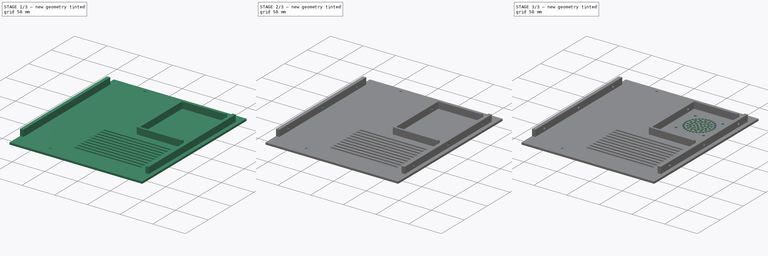
[diagram: build sequence overview — one tinted view per stage of 3, left to right]
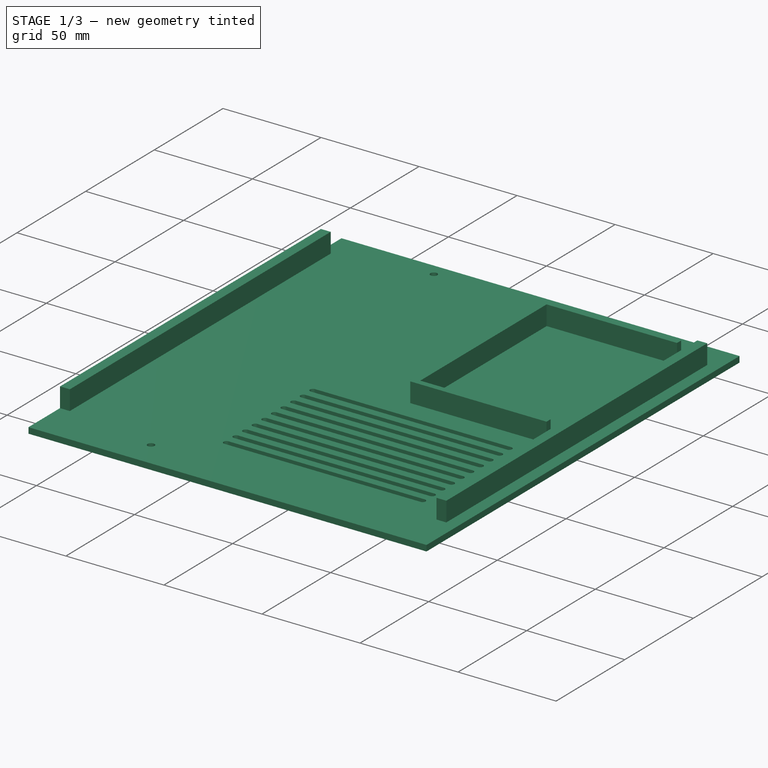
[diagram: stage 1 of 3 — iso view after this stage's code; geometry added in this stage tinted green]
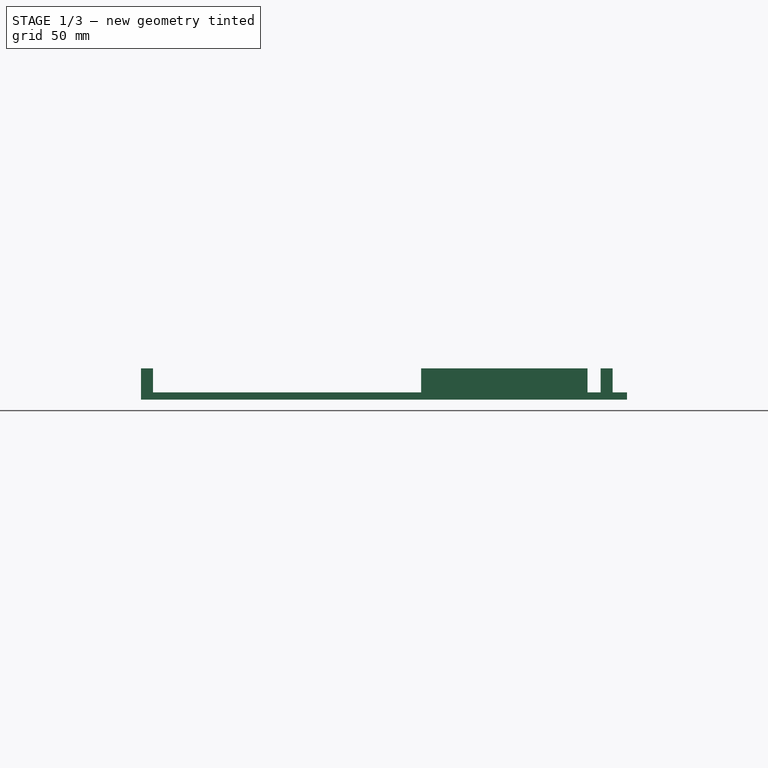
[diagram: stage 1 of 3 — front view after this stage's code; geometry added in this stage tinted green]
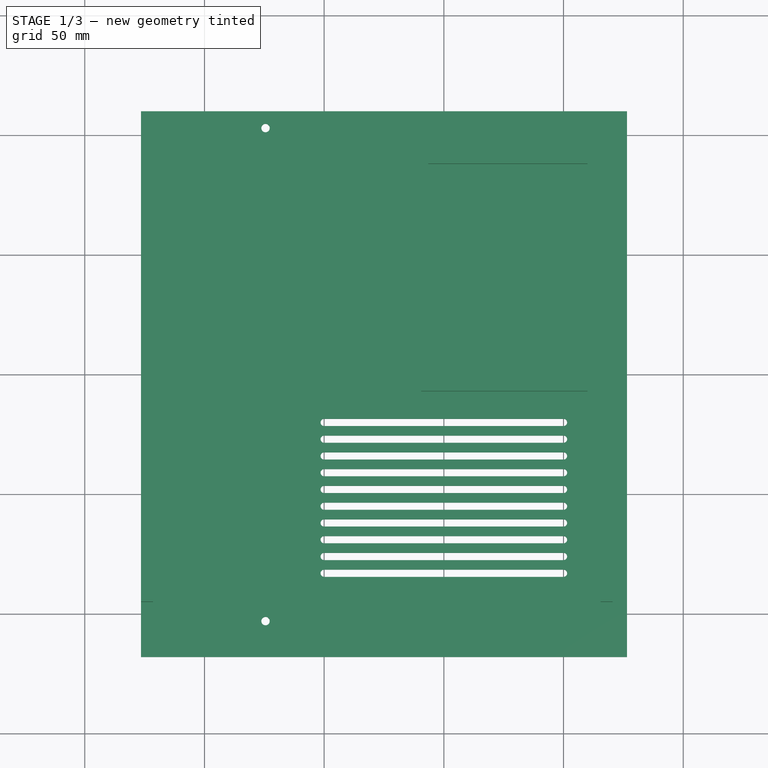
[diagram: stage 1 of 3 — top view after this stage's code; geometry added in this stage tinted green]
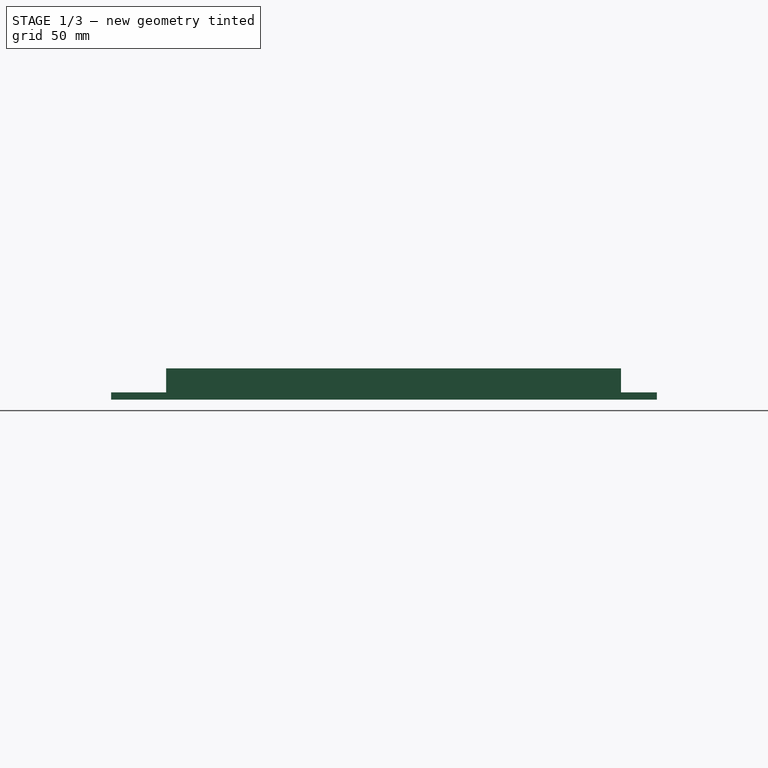
[diagram: stage 1 of 3 — right view after this stage's code; geometry added in this stage tinted green]
FCSTD DOCUMENT  (FreeCAD 0.19R24267 +99 (Git))
Label: T41 7in Top Left Panel Speaker Vents V008
License: All rights reserved
LicenseURL: http://en.wikipedia.org/wiki/All_rights_reserved
objects: Sketcher::SketchObject×5, PartDesign::Pocket×3, PartDesign::Pad×2, PartDesign::Body×1
note: 16 computed .brp shape members not serialized (recipe doc carries the construction recipe); baked Part::Feature solids carry a one-line shape summary decoded from their .brp

FEATURE [Sketcher::SketchObject] Sketch
  FullyConstrained = true
  MapMode = 5
  Support = -> [XY_Plane]
  sketch-geometry (46):
    g0: LineSegment StartX=-126.5 StartY=110 StartZ=0 EndX=76.5 EndY=110 EndZ=0
    g1: LineSegment StartX=76.5 StartY=110 StartZ=0 EndX=76.5 EndY=-118 EndZ=0
    g2: LineSegment StartX=76.5 StartY=-118 StartZ=0 EndX=-126.5 EndY=-118 EndZ=0
    g3: LineSegment StartX=-126.5 StartY=-118 StartZ=0 EndX=-126.5 EndY=110 EndZ=0
    g4: Circle CenterX=-74.5 CenterY=103 CenterZ=0 NormalX=0 NormalY=0 NormalZ=1 AngleXU=0 Radius=1.75
    g5: Circle CenterX=-74.5 CenterY=-103 CenterZ=0 NormalX=0 NormalY=0 NormalZ=1 AngleXU=0 Radius=1.75
    g6: ArcOfCircle CenterX=-50 CenterY=-20 CenterZ=0 NormalX=0 NormalY=0 NormalZ=1 AngleXU=0 Radius=1.5 StartAngle=1.5708 EndAngle=4.71239
    g7: ArcOfCircle CenterX=50 CenterY=-20 CenterZ=0 NormalX=0 NormalY=0 NormalZ=1 AngleXU=0 Radius=1.5 StartAngle=4.71239 EndAngle=7.85398
    g8: LineSegment StartX=-50 StartY=-21.5 StartZ=0 EndX=50 EndY=-21.5 EndZ=0
    g9: LineSegment StartX=-50 StartY=-18.5 StartZ=0 EndX=50 EndY=-18.5 EndZ=0
    g10: ArcOfCircle CenterX=-50 CenterY=-27 CenterZ=0 NormalX=0 NormalY=0 NormalZ=1 AngleXU=0 Radius=1.5 StartAngle=1.5708 EndAngle=4.71239
    g11: ArcOfCircle CenterX=50 CenterY=-27 CenterZ=0 NormalX=0 NormalY=0 NormalZ=1 AngleXU=0 Radius=1.5 StartAngle=4.71239 EndAngle=7.85398
    g12: LineSegment StartX=-50 StartY=-28.5 StartZ=0 EndX=50 EndY=-28.5 EndZ=0
    g13: LineSegment StartX=-50 StartY=-25.5 StartZ=0 EndX=50 EndY=-25.5 EndZ=0
    g14: ArcOfCircle CenterX=-50 CenterY=-34 CenterZ=0 NormalX=0 NormalY=0 NormalZ=1 AngleXU=0 Radius=1.5 StartAngle=1.5708 EndAngle=4.71239
    g15: ArcOfCircle CenterX=50 CenterY=-34 CenterZ=0 NormalX=0 NormalY=0 NormalZ=1 AngleXU=0 Radius=1.5 StartAngle=4.71239 EndAngle=7.85398
    g16: LineSegment StartX=-50 StartY=-35.5 StartZ=0 EndX=50 EndY=-35.5 EndZ=0
    g17: LineSegment StartX=-50 StartY=-32.5 StartZ=0 EndX=50 EndY=-32.5 EndZ=0
    g18: ArcOfCircle CenterX=-50 CenterY=-41 CenterZ=0 NormalX=0 NormalY=0 NormalZ=1 AngleXU=0 Radius=1.5 StartAngle=1.5708 EndAngle=4.71239
    g19: ArcOfCircle CenterX=50 CenterY=-41 CenterZ=0 NormalX=0 NormalY=0 NormalZ=1 AngleXU=0 Radius=1.5 StartAngle=4.71239 EndAngle=7.85398
    g20: LineSegment StartX=-50 StartY=-42.5 StartZ=0 EndX=50 EndY=-42.5 EndZ=0
    g21: LineSegment StartX=-50 StartY=-39.5 StartZ=0 EndX=50 EndY=-39.5 EndZ=0
    g22: ArcOfCircle CenterX=-50 CenterY=-48 CenterZ=0 NormalX=0 NormalY=0 NormalZ=1 AngleXU=0 Radius=1.5 StartAngle=1.5708 EndAngle=4.71239
    g23: ArcOfCircle CenterX=50 CenterY=-48 CenterZ=0 NormalX=0 NormalY=0 NormalZ=1 AngleXU=0 Radius=1.5 StartAngle=4.71239 EndAngle=7.85398
    g24: LineSegment StartX=-50 StartY=-49.5 StartZ=0 EndX=50 EndY=-49.5 EndZ=0
    g25: LineSegment StartX=-50 StartY=-46.5 StartZ=0 EndX=50 EndY=-46.5 EndZ=0
    g26: ArcOfCircle CenterX=-50 CenterY=-55 CenterZ=0 NormalX=0 NormalY=0 NormalZ=1 AngleXU=0 Radius=1.5 StartAngle=1.5708 EndAngle=4.71239
    g27: ArcOfCircle CenterX=50 CenterY=-55 CenterZ=0 NormalX=0 NormalY=0 NormalZ=1 AngleXU=0 Radius=1.5 StartAngle=4.71239 EndAngle=7.85398
    g28: LineSegment StartX=-50 StartY=-56.5 StartZ=0 EndX=50 EndY=-56.5 EndZ=0
    g29: LineSegment StartX=-50 StartY=-53.5 StartZ=0 EndX=50 EndY=-53.5 EndZ=0
    g30: ArcOfCircle CenterX=-50 CenterY=-62 CenterZ=0 NormalX=0 NormalY=0 NormalZ=1 AngleXU=0 Radius=1.5 StartAngle=1.5708 EndAngle=4.71239
    g31: ArcOfCircle CenterX=50 CenterY=-62 CenterZ=0 NormalX=0 NormalY=0 NormalZ=1 AngleXU=0 Radius=1.5 StartAngle=4.71239 EndAngle=7.85398
    g32: LineSegment StartX=-50 StartY=-63.5 StartZ=0 EndX=50 EndY=-63.5 EndZ=0
    g33: LineSegment StartX=-50 StartY=-60.5 StartZ=0 EndX=50 EndY=-60.5 EndZ=0
    g34: ArcOfCircle CenterX=-50 CenterY=-69 CenterZ=0 NormalX=0 NormalY=0 NormalZ=1 AngleXU=0 Radius=1.5 StartAngle=1.5708 EndAngle=4.71239
    g35: ArcOfCircle CenterX=50 CenterY=-69 CenterZ=0 NormalX=0 NormalY=0 NormalZ=1 AngleXU=0 Radius=1.5 StartAngle=4.71239 EndAngle=7.85398
    g36: LineSegment StartX=-50 StartY=-70.5 StartZ=0 EndX=50 EndY=-70.5 EndZ=0
    g37: LineSegment StartX=-50 StartY=-67.5 StartZ=0 EndX=50 EndY=-67.5 EndZ=0
    g38: ArcOfCircle CenterX=-50 CenterY=-76 CenterZ=0 NormalX=0 NormalY=0 NormalZ=1 AngleXU=0 Radius=1.5 StartAngle=1.5708 EndAngle=4.71239
    g39: ArcOfCircle CenterX=50 CenterY=-76 CenterZ=0 NormalX=0 NormalY=0 NormalZ=1 AngleXU=0 Radius=1.5 StartAngle=4.71239 EndAngle=7.85398
    g40: LineSegment StartX=-50 StartY=-77.5 StartZ=0 EndX=50 EndY=-77.5 EndZ=0
    g41: LineSegment StartX=-50 StartY=-74.5 StartZ=0 EndX=50 EndY=-74.5 EndZ=0
    g42: ArcOfCircle CenterX=-50 CenterY=-83 CenterZ=0 NormalX=0 NormalY=0 NormalZ=1 AngleXU=0 Radius=1.5 StartAngle=1.5708 EndAngle=4.71239
    g43: ArcOfCircle CenterX=50 CenterY=-83 CenterZ=0 NormalX=0 NormalY=0 NormalZ=1 AngleXU=0 Radius=1.5 StartAngle=4.71239 EndAngle=7.85398
    g44: LineSegment StartX=-50 StartY=-84.5 StartZ=0 EndX=50 EndY=-84.5 EndZ=0
    g45: LineSegment StartX=-50 StartY=-81.5 StartZ=0 EndX=50 EndY=-81.5 EndZ=0
  constraints (119):
    c: Coincident(g0,g1)
    c: Coincident(g1,g2)
    c: Coincident(g2,g3)
    c: Coincident(g3,g0)
    c: Horizontal(g0)
    c: Vertical(g3)
    c: DistanceX(g0,g0) = 203
    c: DistanceY(g3,g3) = 228
    c: Symmetric(g2,g1,g-2)
    c: Symmetric(g0,g1,g-1)
    c: Equal(g4,g5)
    c: Diameter(g4) = 3.5
    c: DistanceY(g4,g0) = 7
    c: DistanceY(g2,g5) = 15
    c: Vertical(g5,g4)
    c: Tangent(g6,g9) = 1.5708
    c: Tangent(g6,g8) = -1.5708
    c: Tangent(g8,g7) = -1.5708
    c: Tangent(g9,g7) = 1.5708
    c: Horizontal(g8)
    c: Equal(g6,g7)
    c: DistanceX(g8,g8) = 100
    c: DistanceY(g6,g6) = 3
    c: Tangent(g10,g13) = 1.5708
    c: Tangent(g10,g12) = -1.5708
    c: Tangent(g12,g11) = -1.5708
    c: Tangent(g13,g11) = 1.5708
    c: Horizontal(g12)
    c: Equal(g10,g11)
    c: DistanceX(g12,g12) = 100
    c: DistanceY(g10,g10) = 3
    c: Tangent(g14,g17) = 1.5708
    c: Tangent(g14,g16) = -1.5708
    c: Tangent(g16,g15) = -1.5708
    c: Tangent(g17,g15) = 1.5708
    c: Horizontal(g16)
    c: Equal(g14,g15)
    c: DistanceX(g16,g16) = 100
    c: DistanceY(g14,g14) = 3
    c: DistanceY(g14,g10) = 7
    c: Vertical(g14,g10)
    c: Tangent(g18,g21) = 1.5708
    c: Tangent(g18,g20) = -1.5708
    c: Tangent(g20,g19) = -1.5708
    c: Tangent(g21,g19) = 1.5708
    c: Horizontal(g20)
    c: Equal(g18,g19)
    c: DistanceX(g20,g20) = 100
    c: DistanceY(g18,g18) = 3
    c: Tangent(g22,g25) = 1.5708
    c: Tangent(g22,g24) = -1.5708
    c: Tangent(g24,g23) = -1.5708
    c: Tangent(g25,g23) = 1.5708
    c: Horizontal(g24)
    c: Equal(g22,g23)
    c: DistanceX(g24,g24) = 100
    c: DistanceY(g22,g22) = 3
    c: DistanceY(g22,g18) = 7
    c: Vertical(g22,g18)
    c: Tangent(g26,g29) = 1.5708
    c: Tangent(g26,g28) = -1.5708
    c: Tangent(g28,g27) = -1.5708
    c: Tangent(g29,g27) = 1.5708
    c: Horizontal(g28)
    c: Equal(g26,g27)
    c: DistanceX(g28,g28) = 100
    c: DistanceY(g26,g26) = 3
    c: Tangent(g30,g33) = 1.5708
    c: Tangent(g30,g32) = -1.5708
    c: Tangent(g32,g31) = -1.5708
    c: Tangent(g33,g31) = 1.5708
    c: Horizontal(g32)
    c: Equal(g30,g31)
    c: DistanceX(g32,g32) = 100
    c: DistanceY(g30,g30) = 3
    c: DistanceY(g30,g26) = 7
    c: Vertical(g30,g26)
    c: DistanceY(g18,g14) = 7
    c: DistanceY(g10,g6) = 7
    c: DistanceY(g26,g22) = 7
    c: Tangent(g34,g37) = 1.5708
    c: Tangent(g34,g36) = -1.5708
    c: Tangent(g36,g35) = -1.5708
    c: Tangent(g37,g35) = 1.5708
    c: Horizontal(g36)
    c: Equal(g34,g35)
    c: DistanceX(g36,g36) = 100
    c: DistanceY(g34,g34) = 3
    c: Tangent(g38,g41) = 1.5708
    c: Tangent(g38,g40) = -1.5708
    c: Tangent(g40,g39) = -1.5708
    c: Tangent(g41,g39) = 1.5708
    c: Horizontal(g40)
    c: Equal(g38,g39)
    c: DistanceX(g40,g40) = 100
    c: DistanceY(g38,g38) = 3
    c: DistanceY(g38,g34) = 7
    c: Vertical(g38,g34)
    c: Vertical(g34,g30)
    c: Vertical(g26,g22)
    c: Vertical(g18,g14)
    c: Vertical(g10,g6)
    c: DistanceY(g34,g30) = 7
    c: Tangent(g42,g45) = 1.5708
    c: Tangent(g42,g44) = -1.5708
    c: Tangent(g44,g43) = -1.5708
    c: Tangent(g45,g43) = 1.5708
    c: Horizontal(g44)
    c: DistanceX(g44,g44) = 100
    c: DistanceY(g42,g42) = 3
    c: DistanceY(g42,g38) = 7
    c: Vertical(g42,g38)
    c: Symmetric(g42,g43,g-2)
    c: DistanceY(g7,g-1) = 20
    c: DistanceY(g-1,g0) = 110
    c: DistanceY(g1,g0) = 228
    c: DistanceX(g2,g1) = 203
    c: DistanceX(g-1,g0) = 76.5
    c: DistanceX(g2,g5) = 52
FEATURE [Sketcher::SketchObject] Sketch001
  AttachmentOffset = pos=(0,0,3) rot=(0,0,1;0rad)
  FullyConstrained = true
  MapMode = 5
  Placement = pos=(0,0,3) rot=(0,0,1;0rad)
  Support = -> [XY_Plane]
  sketch-geometry (16):
    g0: LineSegment StartX=-126.5 StartY=95 StartZ=0 EndX=-121.5 EndY=95 EndZ=0
    g1: LineSegment StartX=-121.5 StartY=95 StartZ=0 EndX=-121.5 EndY=-95 EndZ=0
    g2: LineSegment StartX=-121.5 StartY=-95 StartZ=0 EndX=-126.5 EndY=-95 EndZ=0
    g3: LineSegment StartX=-126.5 StartY=-95 StartZ=0 EndX=-126.5 EndY=95 EndZ=0
    g4: LineSegment StartX=65.5 StartY=95 StartZ=0 EndX=70.5 EndY=95 EndZ=0
    g5: LineSegment StartX=70.5 StartY=95 StartZ=0 EndX=70.5 EndY=-95 EndZ=0
    g6: LineSegment StartX=70.5 StartY=-95 StartZ=0 EndX=65.5 EndY=-95 EndZ=0
    g7: LineSegment StartX=65.5 StartY=-95 StartZ=0 EndX=65.5 EndY=95 EndZ=0
    g8: LineSegment StartX=60 StartY=91 StartZ=0 EndX=-9.5 EndY=91 EndZ=0
    g9: LineSegment StartX=-9.5 StartY=91 StartZ=0 EndX=-9.5 EndY=-7 EndZ=0
    g10: LineSegment StartX=-9.5 StartY=-7 StartZ=0 EndX=60 EndY=-7 EndZ=0
    g11: LineSegment StartX=60 StartY=88 StartZ=0 EndX=-6.5 EndY=88 EndZ=0
    g12: LineSegment StartX=-6.5 StartY=88 StartZ=0 EndX=-6.5 EndY=-4 EndZ=0
    g13: LineSegment StartX=-6.5 StartY=-4 StartZ=0 EndX=60 EndY=-4 EndZ=0
    g14: LineSegment StartX=60 StartY=-4 StartZ=0 EndX=60 EndY=-7 EndZ=0
    g15: LineSegment StartX=60 StartY=91 StartZ=0 EndX=60 EndY=88 EndZ=0
  constraints (46):
    c: Coincident(g0,g1)
    c: Coincident(g1,g2)
    c: Coincident(g2,g3)
    c: Coincident(g3,g0)
    c: Horizontal(g0)
    c: Horizontal(g2)
    c: Vertical(g3)
    c: Coincident(g4,g5)
    c: Coincident(g5,g6)
    c: Coincident(g6,g7)
    c: Coincident(g7,g4)
    c: Horizontal(g4)
    c: Horizontal(g6)
    c: Vertical(g5)
    c: DistanceX(g0,g0) = 5
    c: DistanceX(g4,g4) = 5
    c: DistanceX(g2) = -126.5
    c: DistanceY(g1,g1) = 190
    c: Symmetric(g0,g1,g-1)
    c: DistanceX(g-1,g4) = 70.5
    c: DistanceY(g5,g5) = 190
    c: Symmetric(g4,g6,g-1)
    c: Horizontal(g8)
    c: Vertical(g9)
    c: Coincident(g9,g10)
    c: Horizontal(g10)
    c: Horizontal(g11)
    c: Vertical(g12)
    c: Coincident(g12,g13)
    c: Horizontal(g13)
    c: DistanceX(g9,g12) = 3
    c: Vertical(g15)
    c: Perpendicular(g14,g10)
    c: Coincident(g11,g15)
    c: Coincident(g8,g15)
    c: DistanceX(g8,g4) = 5.5
    c: Coincident(g10,g14)
    c: Coincident(g13,g14)
    c: DistanceX(g10,g4) = 5.5
    c: DistanceY(g10,g13) = 3
    c: DistanceY(g11,g8) = 3
    c: DistanceY(g8,g4) = 4
    c: DistanceX(g8,g8) = 69.5
    c: DistanceY(g9,g9) = 98
    c: Coincident(g9,g8)
    c: Coincident(g12,g11)
FEATURE [Sketcher::SketchObject] Sketch002
  AttachmentOffset = pos=(0,0,-116.5) rot=(0,0,1;0rad)
  FullyConstrained = true
  MapMode = 5
  Placement = pos=(-116.5,2.59e-14,-2.59e-14) rot=(0.57735,0.57735,0.57735;2.0944rad)
  Support = -> [YZ_Plane]
  sketch-geometry (3):
    g0: Circle CenterX=-75 CenterY=8 CenterZ=0 NormalX=0 NormalY=0 NormalZ=1 AngleXU=0 Radius=1.75
    g1: Circle CenterX=0 CenterY=8 CenterZ=0 NormalX=0 NormalY=0 NormalZ=1 AngleXU=0 Radius=1.75
    g2: Circle CenterX=75 CenterY=8 CenterZ=0 NormalX=0 NormalY=0 NormalZ=1 AngleXU=0 Radius=1.75
  constraints (9):
    c: Equal(g2,g1)
    c: Equal(g2,g0)
    c: Diameter(g2) = 3.5
    c: PointOnObject(g1,g-2)
    c: DistanceX(g-1,g2) = 75
    c: DistanceX(g0,g1) = 75
    c: DistanceY(g-1,g0) = 8
    c: DistanceY(g-1,g1) = 8
    c: DistanceY(g-1,g2) = 8
FEATURE [Sketcher::SketchObject] Sketch003
  AttachmentOffset = pos=(0,0,73.5) rot=(0,0,1;0rad)
  FullyConstrained = true
  MapMode = 5
  Placement = pos=(73.5,-1.63e-14,1.63e-14) rot=(0.57735,0.57735,0.57735;2.0944rad)
  Support = -> [YZ_Plane]
  sketch-geometry (3):
    g0: Circle CenterX=-90 CenterY=6 CenterZ=0 NormalX=0 NormalY=0 NormalZ=1 AngleXU=0 Radius=1.15
    g1: Circle CenterX=0 CenterY=6 CenterZ=0 NormalX=0 NormalY=0 NormalZ=1 AngleXU=0 Radius=1.15
    g2: Circle CenterX=90 CenterY=6 CenterZ=0 NormalX=0 NormalY=0 NormalZ=1 AngleXU=0 Radius=1.15
  constraints (9):
    c: DistanceX(g0,g-1) = 90
    c: PointOnObject(g1,g-2)
    c: DistanceX(g-1,g2) = 90
    c: DistanceY(g-1,g1) = 6
    c: Horizontal(g1,g0)
    c: Horizontal(g1,g2)
    c: Equal(g0,g1)
    c: Equal(g0,g2)
    c: Diameter(g0) = 2.3
FEATURE [PartDesign::Pad] Pad
  Direction = (1,1,1)
  Length = 3
  Length2 = 100
  Profile = -> Sketch
  Type = 0
FEATURE [Sketcher::SketchObject] Sketch005
  AttachmentOffset = pos=(40,60,0) rot=(0,0,1;0rad)
  FullyConstrained = false
  MapMode = 5
  Placement = pos=(40,60,0) rot=(0,0,1;0rad)
  Support = -> [XY_Plane]
  sketch-geometry (76):
    g0: Circle CenterX=-13.721 CenterY=5.67439 CenterZ=0 NormalX=0 NormalY=0 NormalZ=1 AngleXU=0 Radius=1.8
    g1: Circle CenterX=-16.264 CenterY=9.85609 CenterZ=0 NormalX=0 NormalY=0 NormalZ=1 AngleXU=0 Radius=1.7
    g2: Circle CenterX=-15.7731 CenterY=1.36733 CenterZ=0 NormalX=0 NormalY=0 NormalZ=1 AngleXU=0 Radius=1.8
    g3: Circle CenterX=-20.2391 CenterY=8.56405 CenterZ=0 NormalX=0 NormalY=0 NormalZ=1 AngleXU=0 Radius=1.7
    g4: Circle CenterX=-19.8374 CenterY=3.68706 CenterZ=0 NormalX=0 NormalY=0 NormalZ=1 AngleXU=0 Radius=1.8
    g5: Circle CenterX=-23.8601 CenterY=6.47348 CenterZ=0 NormalX=0 NormalY=0 NormalZ=1 AngleXU=0 Radius=1.7
    g6: Circle CenterX=-14.849 CenterY=-3.10335 CenterZ=0 NormalX=0 NormalY=0 NormalZ=1 AngleXU=0 Radius=1.8
    g7: Circle CenterX=-19.95 CenterY=-1.07298 CenterZ=0 NormalX=0 NormalY=0 NormalZ=1 AngleXU=0 Radius=1.8
    g8: Circle CenterX=-26.9673 CenterY=3.67575 CenterZ=0 NormalX=0 NormalY=0 NormalZ=1 AngleXU=0 Radius=1.7
    g9: Circle CenterX=-24.6166 CenterY=-0.61619 CenterZ=0 NormalX=0 NormalY=0 NormalZ=1 AngleXU=0 Radius=1.8
    g10: Circle CenterX=-29.4249 CenterY=0.293139 CenterZ=0 NormalX=0 NormalY=0 NormalZ=1 AngleXU=0 Radius=1.7
    g11: Circle CenterX=-18.7145 CenterY=-6.97822 CenterZ=0 NormalX=0 NormalY=0 NormalZ=1 AngleXU=0 Radius=1.8
    g12: Circle CenterX=-22.7778 CenterY=-4.99787 CenterZ=0 NormalX=0 NormalY=0 NormalZ=1 AngleXU=0 Radius=1.8
    g13: Circle CenterX=-31.1255 CenterY=-3.52652 CenterZ=0 NormalX=0 NormalY=0 NormalZ=1 AngleXU=0 Radius=1.7
    g14: Circle CenterX=-27.2324 CenterY=-6.4913 CenterZ=0 NormalX=0 NormalY=0 NormalZ=1 AngleXU=0 Radius=1.8
    g15: Circle CenterX=-31.9948 CenterY=-7.61629 CenterZ=0 NormalX=0 NormalY=0 NormalZ=1 AngleXU=0 Radius=1.7
    g16: Circle CenterX=-23.7704 CenterY=-9.73245 CenterZ=0 NormalX=0 NormalY=0 NormalZ=1 AngleXU=0 Radius=1.8
    g17: Circle CenterX=-31.9948 CenterY=-11.7974 CenterZ=0 NormalX=0 NormalY=0 NormalZ=1 AngleXU=0 Radius=1.7
    g18: Circle CenterX=-27.2324 CenterY=-12.9224 CenterZ=0 NormalX=0 NormalY=0 NormalZ=1 AngleXU=0 Radius=1.8
    g19: Circle CenterX=-31.1255 CenterY=-15.8872 CenterZ=0 NormalX=0 NormalY=0 NormalZ=1 AngleXU=0 Radius=1.7
    g20: Circle CenterX=-18.7079 CenterY=-12.4515 CenterZ=0 NormalX=0 NormalY=0 NormalZ=1 AngleXU=0 Radius=1.8
    g21: Circle CenterX=-22.7571 CenterY=-14.4626 CenterZ=0 NormalX=0 NormalY=0 NormalZ=1 AngleXU=0 Radius=1.8
    g22: Circle CenterX=-29.4249 CenterY=-19.7069 CenterZ=0 NormalX=0 NormalY=0 NormalZ=1 AngleXU=0 Radius=1.7
    g23: Circle CenterX=-24.6166 CenterY=-18.7975 CenterZ=0 NormalX=0 NormalY=0 NormalZ=1 AngleXU=0 Radius=1.8
    g24: Circle CenterX=-26.9673 CenterY=-23.0895 CenterZ=0 NormalX=0 NormalY=0 NormalZ=1 AngleXU=0 Radius=1.7
    g25: Circle CenterX=-19.912 CenterY=-18.3751 CenterZ=0 NormalX=0 NormalY=0 NormalZ=1 AngleXU=0 Radius=1.8
    g26: Circle CenterX=-23.8601 CenterY=-25.8872 CenterZ=0 NormalX=0 NormalY=0 NormalZ=1 AngleXU=0 Radius=1.7
    g27: Circle CenterX=-19.8374 CenterY=-23.1008 CenterZ=0 NormalX=0 NormalY=0 NormalZ=1 AngleXU=0 Radius=1.8
    g28: Circle CenterX=-20.2391 CenterY=-27.9778 CenterZ=0 NormalX=0 NormalY=0 NormalZ=1 AngleXU=0 Radius=1.7
    g29: Circle CenterX=-9.35978 CenterY=-16.3104 CenterZ=0 NormalX=0 NormalY=0 NormalZ=1 AngleXU=0 Radius=1.8
    g30: Circle CenterX=-15.7245 CenterY=-20.797 CenterZ=0 NormalX=0 NormalY=0 NormalZ=1 AngleXU=0 Radius=1.8
    g31: Circle CenterX=-16.2626 CenterY=-29.2698 CenterZ=0 NormalX=0 NormalY=0 NormalZ=1 AngleXU=0 Radius=1.7
    g32: Circle CenterX=-13.721 CenterY=-25.0881 CenterZ=0 NormalX=0 NormalY=0 NormalZ=1 AngleXU=0 Radius=1.8
    g33: Circle CenterX=-12.1044 CenterY=-29.7069 CenterZ=0 NormalX=0 NormalY=0 NormalZ=1 AngleXU=0 Radius=1.7
    g34: Circle CenterX=-12.1058 CenterY=10.2931 CenterZ=0 NormalX=0 NormalY=0 NormalZ=1 AngleXU=0 Radius=1.7
    g35: Circle CenterX=-33.1044 CenterY=11.2931 CenterZ=0 NormalX=0 NormalY=0 NormalZ=1 AngleXU=0 Radius=1.75
    g36: Circle CenterX=-33.1044 CenterY=-30.7069 CenterZ=0 NormalX=0 NormalY=0 NormalZ=1 AngleXU=0 Radius=1.75
    g37: Circle CenterX=-15.1784 CenterY=-9.70686 CenterZ=0 NormalX=0 NormalY=0 NormalZ=1 AngleXU=0 Radius=1.6
    g38: Circle CenterX=-7.94479 CenterY=9.85609 CenterZ=0 NormalX=0 NormalY=0 NormalZ=1 AngleXU=0 Radius=1.7
    g39: Circle CenterX=5.2161 CenterY=0.293139 CenterZ=0 NormalX=0 NormalY=0 NormalZ=1 AngleXU=0 Radius=1.7
    g40: Circle CenterX=2.75849 CenterY=3.67575 CenterZ=0 NormalX=0 NormalY=0 NormalZ=1 AngleXU=0 Radius=1.7
    g41: Circle CenterX=-0.348704 CenterY=6.47348 CenterZ=0 NormalX=0 NormalY=0 NormalZ=1 AngleXU=0 Radius=1.7
    g42: Circle CenterX=-3.96968 CenterY=8.56405 CenterZ=0 NormalX=0 NormalY=0 NormalZ=1 AngleXU=0 Radius=1.7
    g43: Circle CenterX=6.91672 CenterY=-3.52652 CenterZ=0 NormalX=0 NormalY=0 NormalZ=1 AngleXU=0 Radius=1.7
    g44: Circle CenterX=7.78603 CenterY=-7.61629 CenterZ=0 NormalX=0 NormalY=0 NormalZ=1 AngleXU=0 Radius=1.7
    g45: Circle CenterX=7.78603 CenterY=-11.7974 CenterZ=0 NormalX=0 NormalY=0 NormalZ=1 AngleXU=0 Radius=1.7
    g46: Circle CenterX=6.91672 CenterY=-15.8872 CenterZ=0 NormalX=0 NormalY=0 NormalZ=1 AngleXU=0 Radius=1.7
    g47: Circle CenterX=5.2161 CenterY=-19.7069 CenterZ=0 NormalX=0 NormalY=0 NormalZ=1 AngleXU=0 Radius=1.7
    g48: Circle CenterX=2.75849 CenterY=-23.0895 CenterZ=0 NormalX=0 NormalY=0 NormalZ=1 AngleXU=0 Radius=1.7
    g49: Circle CenterX=-0.348704 CenterY=-25.8872 CenterZ=0 NormalX=0 NormalY=0 NormalZ=1 AngleXU=0 Radius=1.7
    g50: Circle CenterX=-3.96968 CenterY=-27.9778 CenterZ=0 NormalX=0 NormalY=0 NormalZ=1 AngleXU=0 Radius=1.7
    g51: Circle CenterX=-7.94618 CenterY=-29.2698 CenterZ=0 NormalX=0 NormalY=0 NormalZ=1 AngleXU=0 Radius=1.7
    g52: Circle CenterX=-7.32516 CenterY=5.00215 CenterZ=0 NormalX=0 NormalY=0 NormalZ=1 AngleXU=0 Radius=1.7
    g53: Circle CenterX=-1.75565 CenterY=1.7866 CenterZ=0 NormalX=0 NormalY=0 NormalZ=1 AngleXU=0 Radius=1.8
    g54: Circle CenterX=2.02446 CenterY=-3.41628 CenterZ=0 NormalX=0 NormalY=0 NormalZ=1 AngleXU=0 Radius=1.8
    g55: Circle CenterX=2.02446 CenterY=-15.9974 CenterZ=0 NormalX=0 NormalY=0 NormalZ=1 AngleXU=0 Radius=1.8
    g56: Circle CenterX=-1.75565 CenterY=-21.2003 CenterZ=0 NormalX=0 NormalY=0 NormalZ=1 AngleXU=0 Radius=1.8
    g57: Circle CenterX=-7.32516 CenterY=-24.4159 CenterZ=0 NormalX=0 NormalY=0 NormalZ=1 AngleXU=0 Radius=1.8
    g58: Circle CenterX=-6.17419 CenterY=0.339504 CenterZ=0 NormalX=0 NormalY=0 NormalZ=1 AngleXU=0 Radius=1.8
    g59: Circle CenterX=-2.60868 CenterY=-2.92984 CenterZ=0 NormalX=0 NormalY=0 NormalZ=1 AngleXU=0 Radius=1.8
    g60: Circle CenterX=-0.675929 CenterY=-7.36447 CenterZ=0 NormalX=0 NormalY=0 NormalZ=1 AngleXU=0 Radius=1.8
    g61: Circle CenterX=-0.708276 CenterY=-12.2019 CenterZ=0 NormalX=0 NormalY=0 NormalZ=1 AngleXU=0 Radius=1.8
    g62: Circle CenterX=-2.70016 CenterY=-16.6103 CenterZ=0 NormalX=0 NormalY=0 NormalZ=1 AngleXU=0 Radius=1.8
    g63: Circle CenterX=-6.30907 CenterY=-19.8316 CenterZ=0 NormalX=0 NormalY=0 NormalZ=1 AngleXU=0 Radius=1.8
    g64: Circle CenterX=-9.37577 CenterY=-3.09673 CenterZ=0 NormalX=0 NormalY=0 NormalZ=1 AngleXU=0 Radius=1.8
    g65: Circle CenterX=-5.5009 CenterY=-6.96223 CenterZ=0 NormalX=0 NormalY=0 NormalZ=1 AngleXU=0 Radius=1.8
    g66: Circle CenterX=-12.1051 CenterY=-12.7809 CenterZ=0 NormalX=0 NormalY=0 NormalZ=1 AngleXU=0 Radius=1.6
    g67: Circle CenterX=-5.49427 CenterY=-12.4355 CenterZ=0 NormalX=0 NormalY=0 NormalZ=1 AngleXU=0 Radius=1.8
    g68: Circle CenterX=-10.9145 CenterY=-21.3121 CenterZ=0 NormalX=0 NormalY=0 NormalZ=1 AngleXU=0 Radius=1.8
    g69: Circle CenterX=8.89559 CenterY=11.2931 CenterZ=0 NormalX=0 NormalY=0 NormalZ=1 AngleXU=0 Radius=1.75
    g70: Circle CenterX=8.89559 CenterY=-30.7069 CenterZ=0 NormalX=0 NormalY=0 NormalZ=1 AngleXU=0 Radius=1.75
    g71: Circle CenterX=-14.833 CenterY=-16.317 CenterZ=0 NormalX=0 NormalY=0 NormalZ=1 AngleXU=0 Radius=1.8
    g72: Circle CenterX=-10.9654 CenterY=1.90346 CenterZ=0 NormalX=0 NormalY=0 NormalZ=1 AngleXU=0 Radius=1.8
    g73: Circle CenterX=-11.9312 CenterY=-6.59405 CenterZ=0 NormalX=0 NormalY=0 NormalZ=1 AngleXU=0 Radius=1.6
    g74: Circle CenterX=-9.08888 CenterY=-9.67605 CenterZ=0 NormalX=0 NormalY=0 NormalZ=1 AngleXU=0 Radius=1.6
    g75: Circle CenterX=3.56004 CenterY=-9.76402 CenterZ=0 NormalX=0 NormalY=0 NormalZ=1 AngleXU=0 Radius=1.8
  constraints (36):
    c: Radius(g52) = 1.7
    c: Equal(g0, g53-g57) x5
    c: Equal(g0,g32)
    c: Equal(g0,g27)
    c: Equal(g0,g23)
    c: Equal(g0,g18)
    c: Equal(g0,g14)
    c: Equal(g0,g9)
    c: Equal(g0,g4)
    c: Radius(g0) = 1.8
    c: Radius(g25) = 1.8
    c: Equal(g6,g64)
    c: Equal(g6,g65)
    c: Equal(g6,g67)
    c: Equal(g6,g29)
    c: Equal(g6,g71)
    c: Equal(g6,g20)
    c: Equal(g6,g11)
    c: Radius(g6) = 1.8
    c: Radius(g72) = 1.8
    c: Equal(g2,g7)
    c: Equal(g2,g12)
    c: Equal(g2,g16)
    c: Equal(g2,g21)
    c: Radius(g2) = 1.8
    c: Equal(g60,g61)
    c: Equal(g60,g62)
    c: Equal(g60,g63)
    c: Equal(g60,g68)
    c: Equal(g60,g30)
    c: Radius(g60) = 1.8
    c: Equal(g58,g59)
    c: Radius(g58) = 1.8
    c: Equal(g74,g73)
    c: Radius(g74) = 1.6
    c: Radius(g75) = 1.8
FEATURE [PartDesign::Pad] Pad001  label="Flange"
  BaseFeature = -> Pad
  Direction = (1,1,1)
  Length = 10.01
  Length2 = 100
  Profile = -> Sketch001
  Type = 0
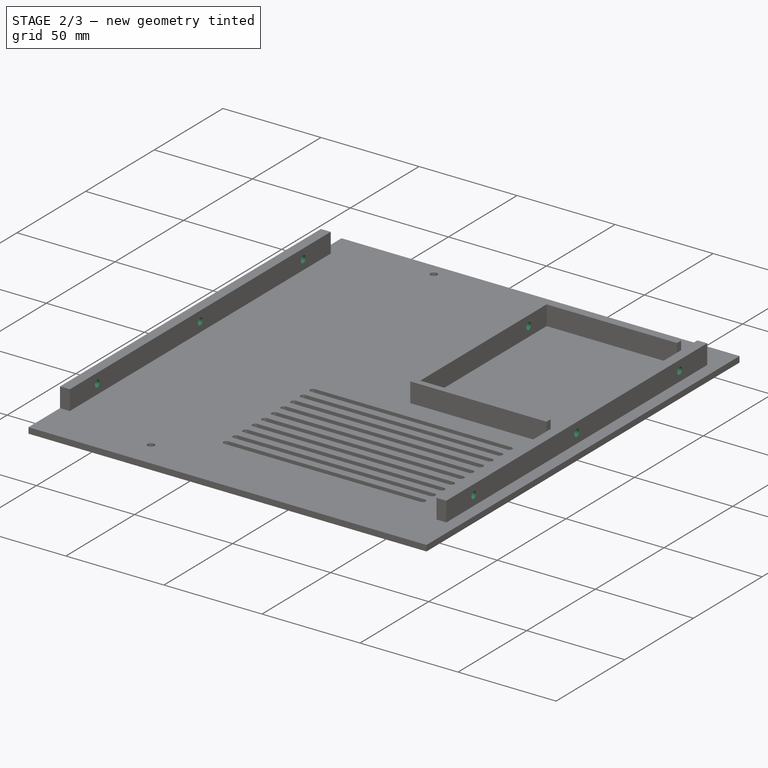
[diagram: stage 2 of 3 — iso view after this stage's code; geometry added in this stage tinted green]
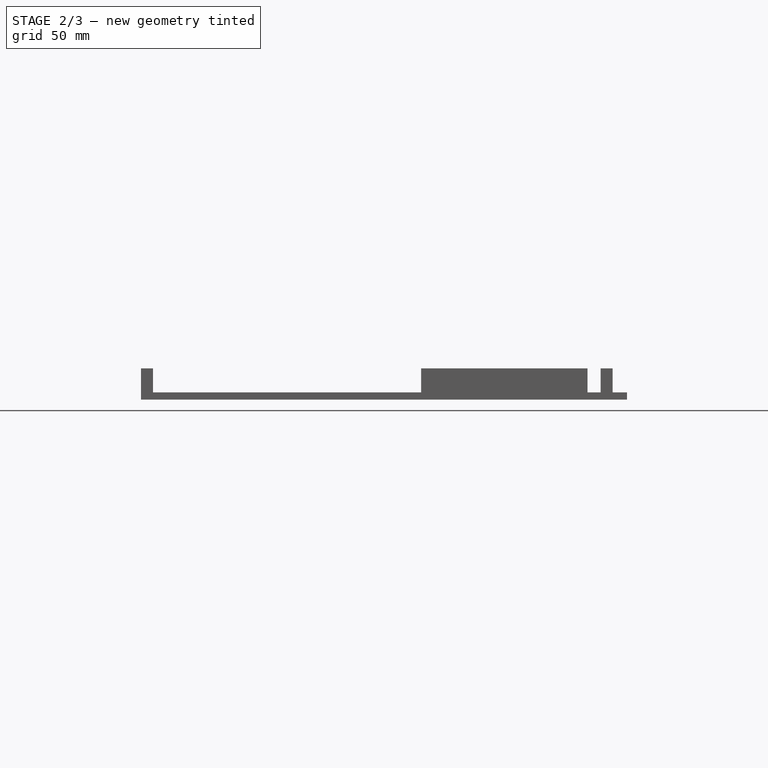
[diagram: stage 2 of 3 — front view after this stage's code; geometry added in this stage tinted green]
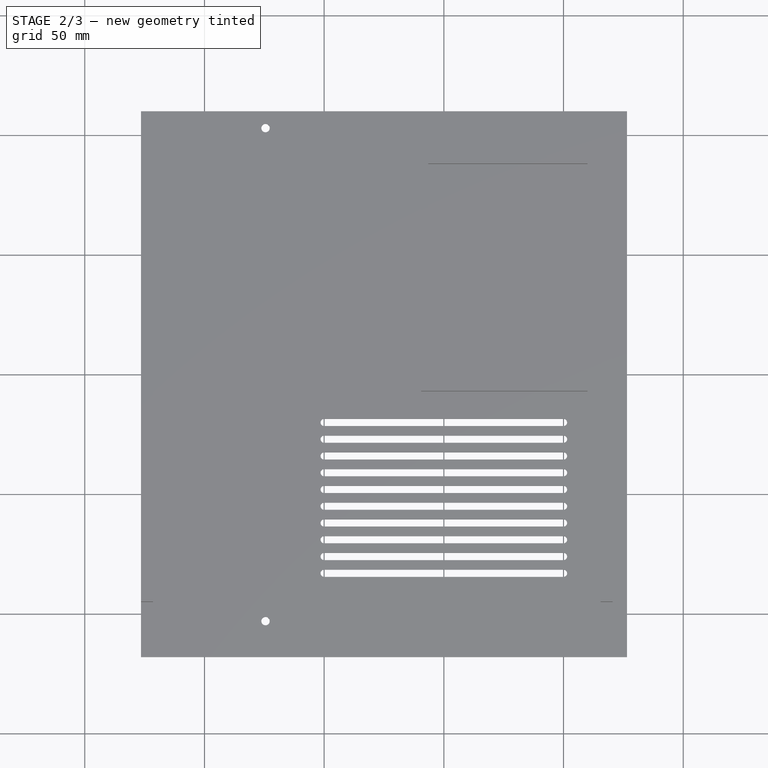
[diagram: stage 2 of 3 — top view after this stage's code; geometry added in this stage tinted green]
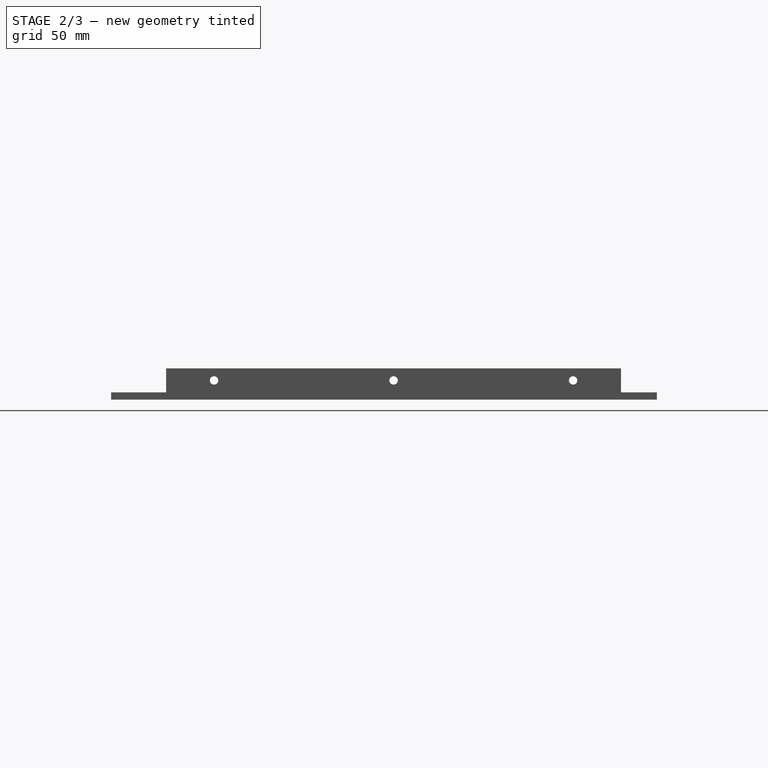
[diagram: stage 2 of 3 — right view after this stage's code; geometry added in this stage tinted green]
FEATURE [PartDesign::Pocket] Pocket  label="Center Holes"
  BaseFeature = -> Pad001
  Length = 440
  Length2 = 100
  Midplane = true
  Profile = -> Sketch002
  Reversed = true
  Type = 0
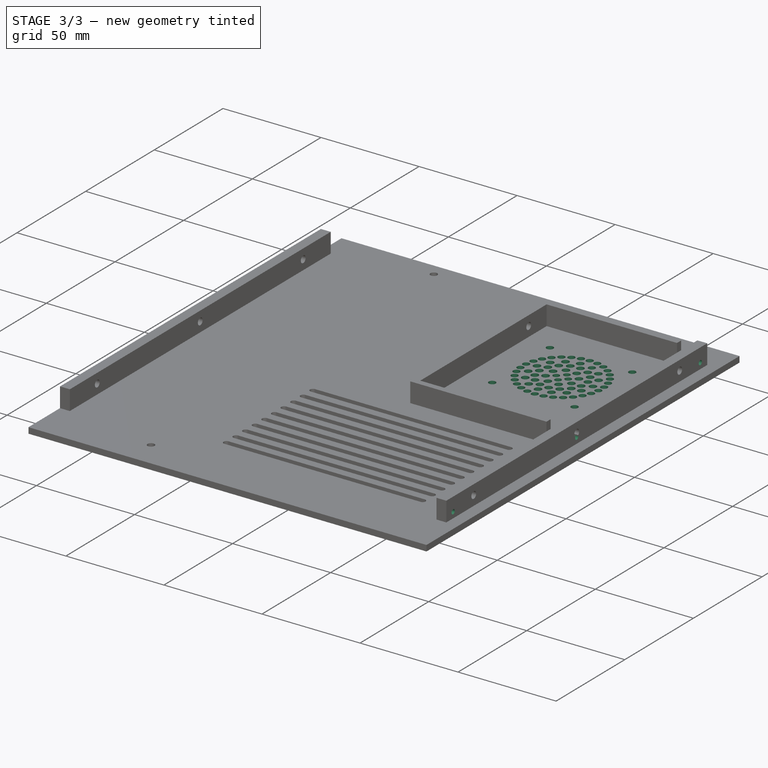
[diagram: stage 3 of 3 — iso view after this stage's code; geometry added in this stage tinted green]
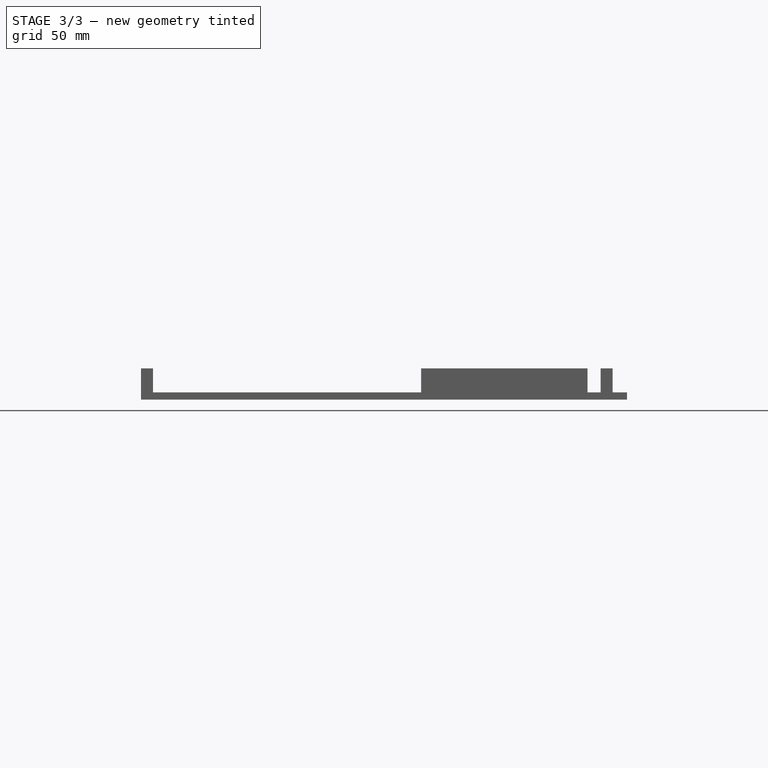
[diagram: stage 3 of 3 — front view after this stage's code; geometry added in this stage tinted green]
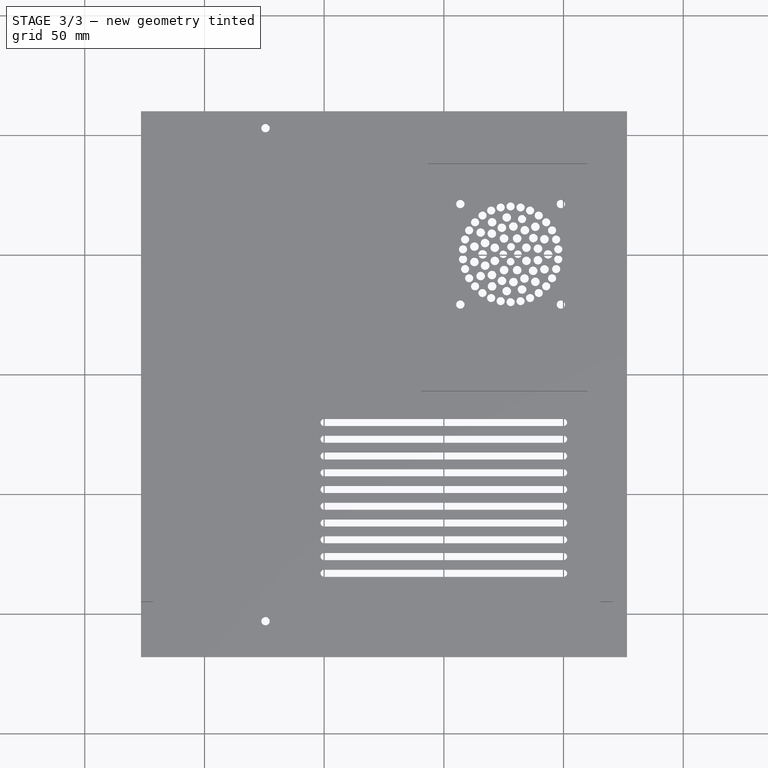
[diagram: stage 3 of 3 — top view after this stage's code; geometry added in this stage tinted green]
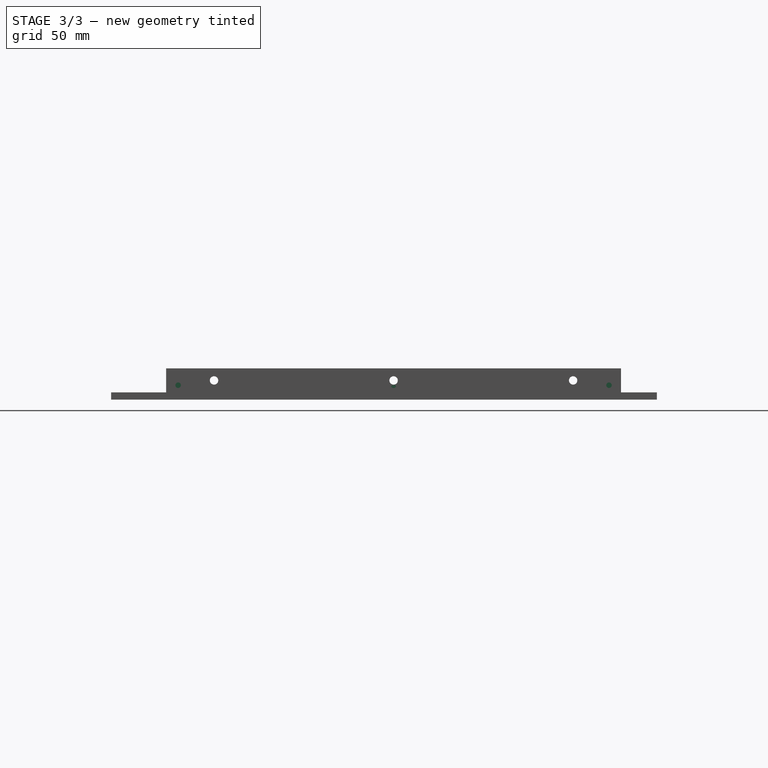
[diagram: stage 3 of 3 — right view after this stage's code; geometry added in this stage tinted green]
FEATURE [PartDesign::Pocket] Pocket001  label="Bottom Holes"
  BaseFeature = -> Pocket
  Length = 5.5
  Length2 = 100
  Profile = -> Sketch003
  Type = 0
FEATURE [PartDesign::Pocket] Pocket002
  BaseFeature = -> Pocket001
  Length = 5.5
  Length2 = 100
  Profile = -> Sketch005
  Reversed = true
  Type = 0
FEATURE [PartDesign::Body] Body
  Group = -> [Sketch,Pad,Sketch001,Pad001,Sketch002,Pocket,Sketch003,Pocket001,Sketch005,Pocket002]
  Origin = -> Origin
  Tip = -> Pocket002
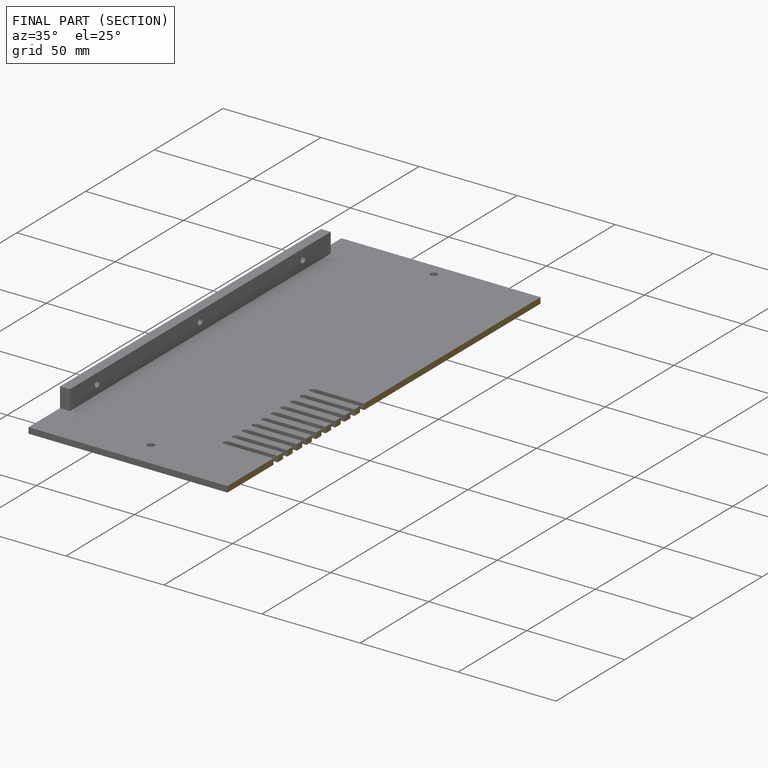
[diagram: finished part — half-section view (interior)]
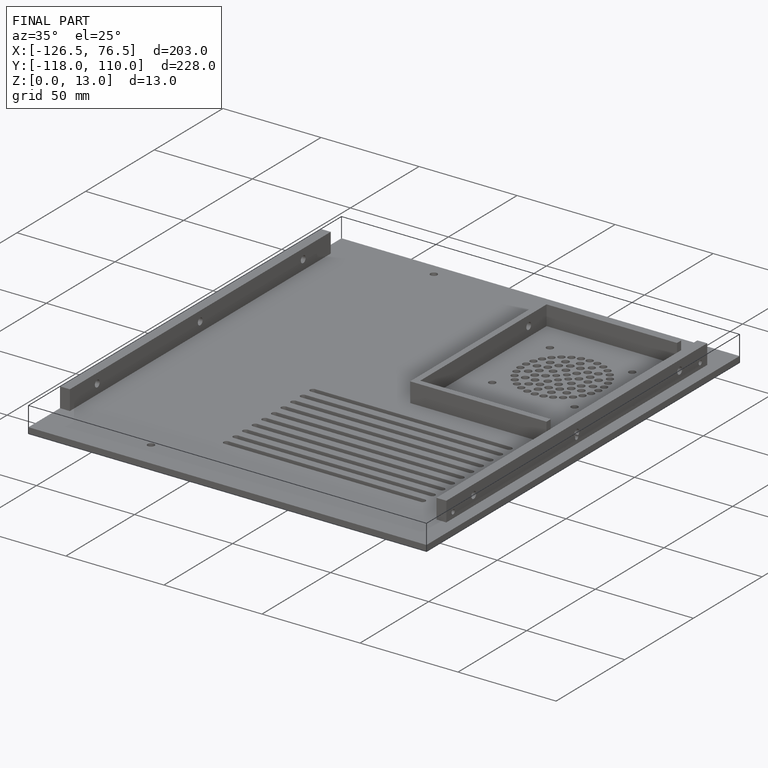
[diagram: finished part — iso view with bounding-box wireframe]
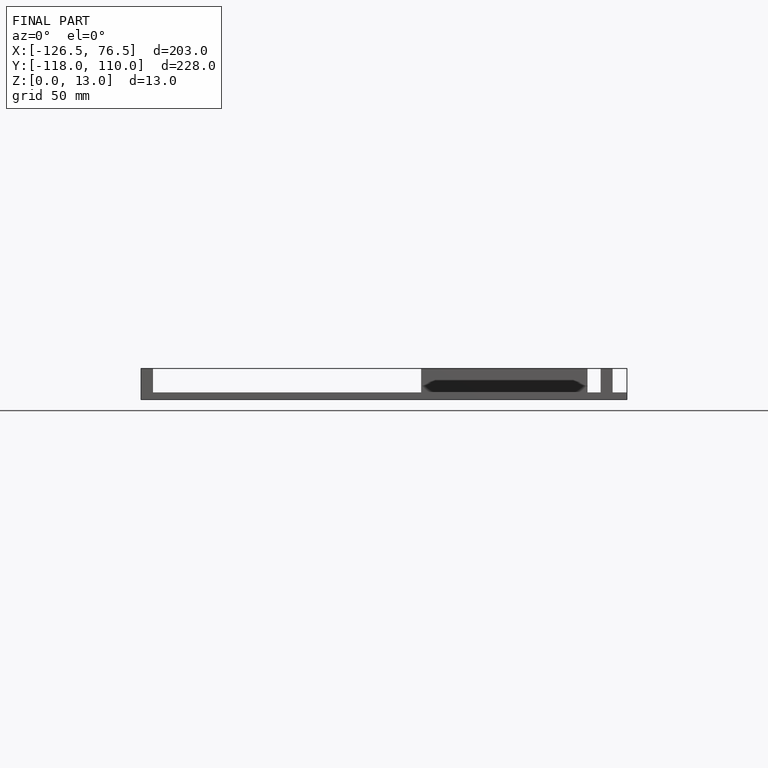
[diagram: finished part — front view with bounding-box wireframe]
